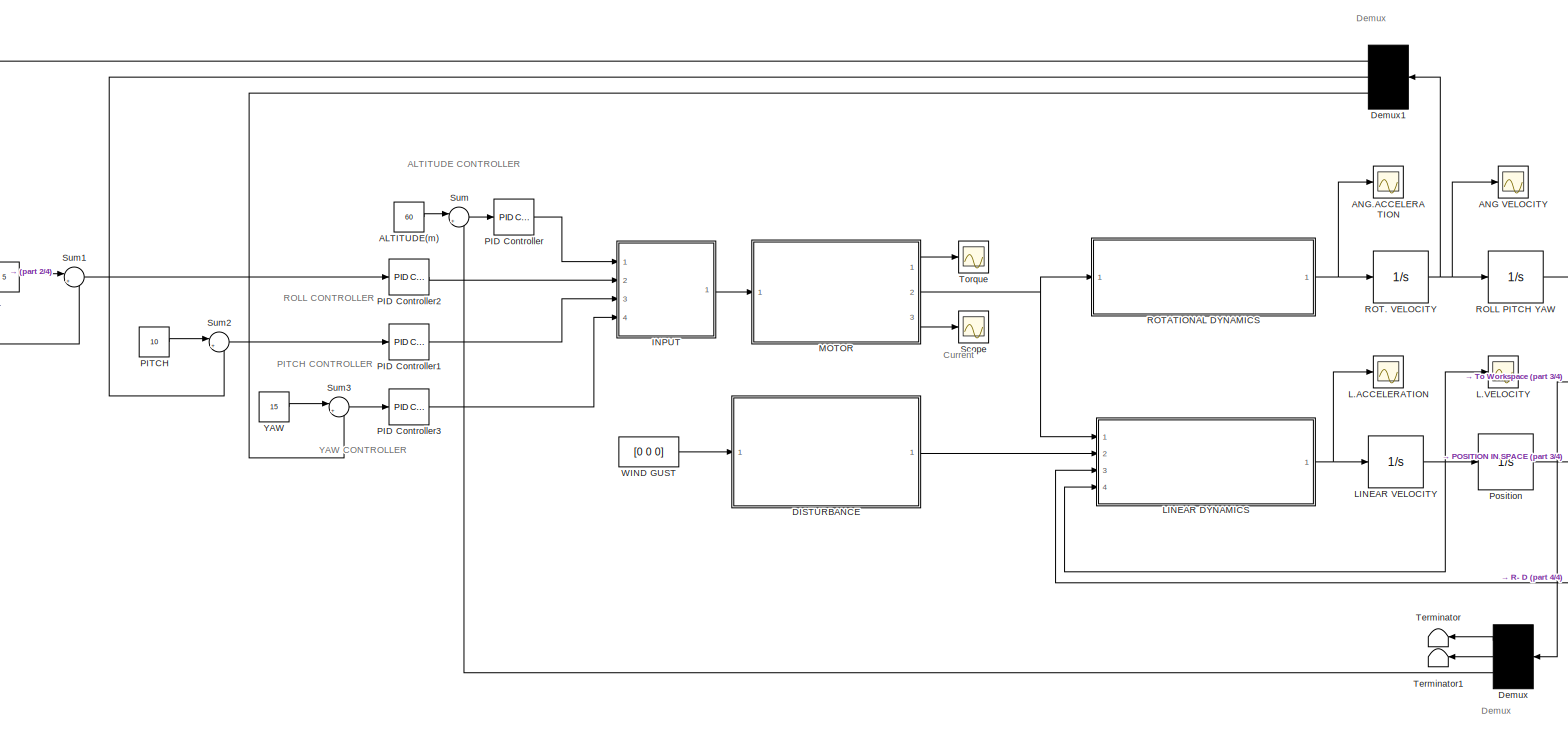
[diagram: root canvas - part 1/4, most of the canvas]
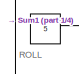
[diagram: root canvas - part 2/4, middle left region]
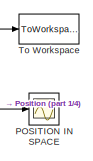
[diagram: root canvas - part 3/4, middle right region]
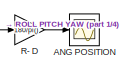
[diagram: root canvas - part 4/4, middle right region]
MODEL slx_8d508591193e
KIND model
CONFIG AbsTol = auto
CONFIG EnableMultiTasking = off
CONFIG FixedStep = auto
CONFIG MaxStep = auto
CONFIG MinStep = auto
CONFIG RelTol = 1e-3
CONFIG SampleTimeConstraint = Unconstrained
CONFIG Solver = VariableStepAuto
CONFIG SolverName = VariableStepAuto
CONFIG StartTime = 0.0
CONFIG StopTime = 100
BLOCK [Scope] 	ANG.ACCELERATION
  Floating = off
  NumInputPorts = 1
  Ports = [1]
  ScopeSpecificationString = Simulink.scopes.TimeScopeBlockCfg('CurrentConfiguration', extmgr.ConfigurationSet(extmgr.Configuration('Core','General UI',true),extmgr.Configuration('Core','Source UI',true),extmgr.Configuration('Sources','WiredSimulink',true,'DataLoggingVariableName','ScopeData4'),extmgr.Configuration('Visuals','Time Domain',true,'SerializedDisplays',{struct('MinYLimReal','-1.00000','MaxYLimReal','1.00000','YLab...<+1454ch>
BLOCK [Scope] 	POSITION IN SPACE
  Floating = off
  NumInputPorts = 1
  Ports = [1]
  ScopeSpecificationString = Simulink.scopes.TimeScopeBlockCfg('CurrentConfiguration', extmgr.ConfigurationSet(extmgr.Configuration('Core','General UI',true,'FigureColor',[1 1 1]),extmgr.Configuration('Core','Source UI',true),extmgr.Configuration('Sources','WiredSimulink',true,'DataLoggingVariableName','ScopeData6'),extmgr.Configuration('Visuals','Time Domain',true,'SerializedDisplays',{struct('MinYLimReal','-7.57413','MaxYLi...<+1616ch>
BLOCK [Constant]  
  Value = 5
BLOCK [Constant] ALTITUDE(m)
  Value = 60
BLOCK [Scope] ANG POSITION
  Floating = off
  NumInputPorts = 1
  Ports = [1]
  ScopeSpecificationString = Simulink.scopes.TimeScopeBlockCfg('CurrentConfiguration', extmgr.ConfigurationSet(extmgr.Configuration('Core','General UI',true),extmgr.Configuration('Core','Source UI',true),extmgr.Configuration('Sources','WiredSimulink',true),extmgr.Configuration('Visuals','Time Domain',true,'SerializedDisplays',{struct('MinYLimReal','-4340.5049','MaxYLimReal','3682.34054','YLabelReal','','MinYLimMag','  0.00000...<+1456ch>
BLOCK [Scope] ANG VELOCITY
  Floating = off
  NumInputPorts = 1
  Ports = [1]
  ScopeSpecificationString = Simulink.scopes.TimeScopeBlockCfg('CurrentConfiguration', extmgr.ConfigurationSet(extmgr.Configuration('Core','General UI',true,'FigureColor',[1 1 1]),extmgr.Configuration('Core','Source UI',true),extmgr.Configuration('Sources','WiredSimulink',true,'DataLoggingVariableName','ScopeData1'),extmgr.Configuration('Visuals','Time Domain',true,'SerializedDisplays',{struct('MinYLimReal','10.00447','MaxYLi...<+1802ch>
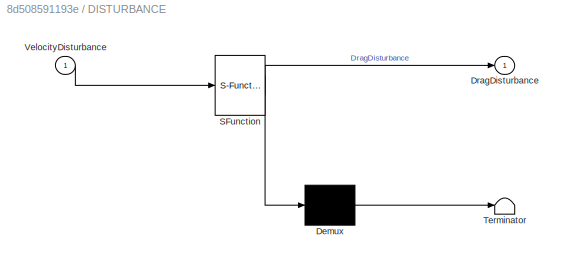
BLOCK [SubSystem] DISTURBANCE
  ErrorFcn = Stateflow.Translate.translate
  PermitHierarchicalResolution = ExplicitOnly
  Ports = [1, 1]
  RequestExecContextInheritance = off
  SFBlockType = MATLAB Function
  TreatAsAtomicUnit = on
BLOCK [Demux] DISTURBANCE/ Demux 
  Outputs = 1
  Ports = [1, 1]
BLOCK [S-Function] DISTURBANCE/ SFunction 
  EnableBusSupport = on
  FunctionName = sf_sfun
  PortCounts = [1 2]
  Ports = [1, 2]
  SFcnIsStateOwnerBlock = off
  SFunctionDeploymentMode = off
  Tag = Stateflow S-Function RBL1 4
BLOCK [Terminator] DISTURBANCE/ Terminator 
BLOCK [Outport] DISTURBANCE/DragDisturbance
  IconDisplay = Port number
BLOCK [Inport] DISTURBANCE/VelocityDisturbance
  IconDisplay = Port number
BLOCK [Demux] Demux
  DisplayOption = bar
  Outputs = 3
  Ports = [1, 3]
BLOCK [Demux] Demux1
  DisplayOption = bar
  Outputs = 3
  Ports = [1, 3]
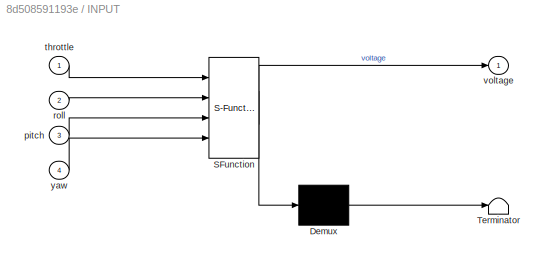
BLOCK [SubSystem] INPUT
  ErrorFcn = Stateflow.Translate.translate
  PermitHierarchicalResolution = ExplicitOnly
  Ports = [4, 1]
  RequestExecContextInheritance = off
  SFBlockType = MATLAB Function
  TreatAsAtomicUnit = on
BLOCK [Demux] INPUT/ Demux 
  Outputs = 1
  Ports = [1, 1]
BLOCK [S-Function] INPUT/ SFunction 
  EnableBusSupport = on
  FunctionName = sf_sfun
  PortCounts = [4 2]
  Ports = [4, 2]
  SFcnIsStateOwnerBlock = off
  SFunctionDeploymentMode = off
  Tag = Stateflow S-Function RBL1 5
BLOCK [Terminator] INPUT/ Terminator 
BLOCK [Inport] INPUT/pitch
  IconDisplay = Port number
  Port = 3
BLOCK [Inport] INPUT/roll
  IconDisplay = Port number
  Port = 2
BLOCK [Inport] INPUT/throttle
  IconDisplay = Port number
BLOCK [Outport] INPUT/voltage
  IconDisplay = Port number
BLOCK [Inport] INPUT/yaw
  IconDisplay = Port number
  Port = 4
BLOCK [Scope] L.ACCELERATION
  Floating = off
  NumInputPorts = 1
  Ports = [1]
  ScopeSpecificationString = Simulink.scopes.TimeScopeBlockCfg('CurrentConfiguration', extmgr.ConfigurationSet(extmgr.Configuration('Core','General UI',true),extmgr.Configuration('Core','Source UI',true),extmgr.Configuration('Sources','WiredSimulink',true,'DataLoggingVariableName','ScopeData3'),extmgr.Configuration('Visuals','Time Domain',true,'SerializedDisplays',{struct('MinYLimReal','-65.17724','MaxYLimReal','558.9964','YL...<+1521ch>
BLOCK [Scope] L.VELOCITY
  Floating = off
  NumInputPorts = 1
  Ports = [1]
  ScopeSpecificationString = Simulink.scopes.TimeScopeBlockCfg('CurrentConfiguration', extmgr.ConfigurationSet(extmgr.Configuration('Core','General UI',true),extmgr.Configuration('Core','Source UI',true),extmgr.Configuration('Sources','WiredSimulink',true,'DataLoggingVariableName','ScopeData1'),extmgr.Configuration('Visuals','Time Domain',true,'SerializedDisplays',{struct('MinYLimReal','-220.61879','MaxYLimReal','220.12311','...<+1524ch>
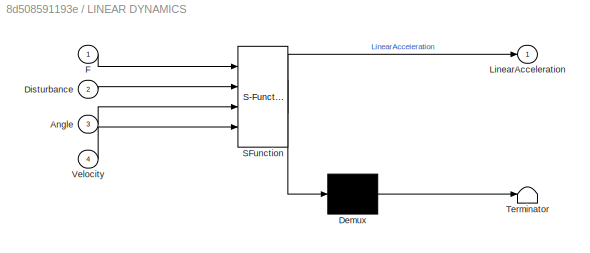
BLOCK [SubSystem] LINEAR DYNAMICS
  ErrorFcn = Stateflow.Translate.translate
  PermitHierarchicalResolution = ExplicitOnly
  Ports = [4, 1]
  RequestExecContextInheritance = off
  SFBlockType = MATLAB Function
  TreatAsAtomicUnit = on
BLOCK [Demux] LINEAR DYNAMICS/ Demux 
  Outputs = 1
  Ports = [1, 1]
BLOCK [S-Function] LINEAR DYNAMICS/ SFunction 
  EnableBusSupport = on
  FunctionName = sf_sfun
  PortCounts = [4 2]
  Ports = [4, 2]
  SFcnIsStateOwnerBlock = off
  SFunctionDeploymentMode = off
  Tag = Stateflow S-Function RBL1 3
BLOCK [Terminator] LINEAR DYNAMICS/ Terminator 
BLOCK [Inport] LINEAR DYNAMICS/Angle
  IconDisplay = Port number
  Port = 3
BLOCK [Inport] LINEAR DYNAMICS/Disturbance
  IconDisplay = Port number
  Port = 2
BLOCK [Inport] LINEAR DYNAMICS/F
  IconDisplay = Port number
BLOCK [Outport] LINEAR DYNAMICS/LinearAcceleration
  IconDisplay = Port number
BLOCK [Inport] LINEAR DYNAMICS/Velocity
  IconDisplay = Port number
  Port = 4
BLOCK [Integrator] LINEAR VELOCITY
  Ports = [1, 1]
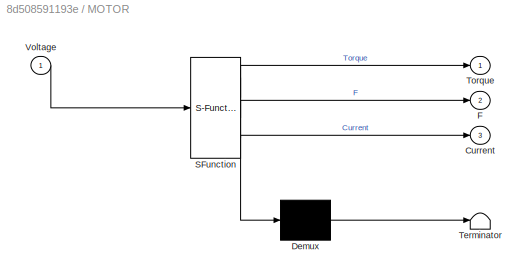
BLOCK [SubSystem] MOTOR
  ErrorFcn = Stateflow.Translate.translate
  PermitHierarchicalResolution = ExplicitOnly
  Ports = [1, 3]
  RequestExecContextInheritance = off
  SFBlockType = MATLAB Function
  TreatAsAtomicUnit = on
BLOCK [Demux] MOTOR/ Demux 
  Outputs = 1
  Ports = [1, 1]
BLOCK [S-Function] MOTOR/ SFunction 
  EnableBusSupport = on
  FunctionName = sf_sfun
  PortCounts = [1 4]
  Ports = [1, 4]
  SFcnIsStateOwnerBlock = off
  SFunctionDeploymentMode = off
  Tag = Stateflow S-Function RBL1 2
BLOCK [Terminator] MOTOR/ Terminator 
BLOCK [Outport] MOTOR/Current
  IconDisplay = Port number
  Port = 3
BLOCK [Outport] MOTOR/F
  IconDisplay = Port number
  Port = 2
BLOCK [Outport] MOTOR/Torque
  IconDisplay = Port number
BLOCK [Inport] MOTOR/Voltage
  IconDisplay = Port number
BLOCK [Reference] PID Controller  REF=simulink/Continuous/PID Controller
  Ports = [1, 1]
  SourceBlock = simulink/Continuous/PID Controller
  SourceProductBaseCode = SL
  SourceProductName = Simulink
  SourceType = PID 1dof
BLOCK [Reference] PID Controller1  REF=simulink/Continuous/PID Controller
  Ports = [1, 1]
  SourceBlock = simulink/Continuous/PID Controller
  SourceProductBaseCode = SL
  SourceProductName = Simulink
  SourceType = PID 1dof
BLOCK [Reference] PID Controller2  REF=simulink/Continuous/PID Controller
  Ports = [1, 1]
  SourceBlock = simulink/Continuous/PID Controller
  SourceProductBaseCode = SL
  SourceProductName = Simulink
  SourceType = PID 1dof
BLOCK [Reference] PID Controller3  REF=simulink/Continuous/PID Controller
  Ports = [1, 1]
  SourceBlock = simulink/Continuous/PID Controller
  SourceProductBaseCode = SL
  SourceProductName = Simulink
  SourceType = PID 1dof
BLOCK [Constant] PITCH 
  Value = 10
BLOCK [Integrator] Position
  Ports = [1, 1]
BLOCK [Gain] R- D
  Gain = 180/pi()
  OutDataTypeStr = Inherit: Inherit via internal rule
  ParamDataTypeStr = Inherit: Inherit via internal rule
  SaturateOnIntegerOverflow = off
BLOCK [Integrator] ROLL PITCH YAW
  Ports = [1, 1]
BLOCK [Integrator] ROT. VELOCITY
  Ports = [1, 1]
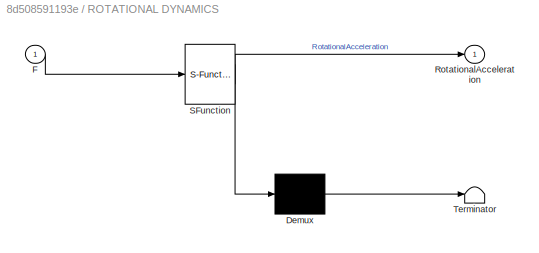
BLOCK [SubSystem] ROTATIONAL DYNAMICS
  ErrorFcn = Stateflow.Translate.translate
  PermitHierarchicalResolution = ExplicitOnly
  Ports = [1, 1]
  RequestExecContextInheritance = off
  SFBlockType = MATLAB Function
  TreatAsAtomicUnit = on
BLOCK [Demux] ROTATIONAL DYNAMICS/ Demux 
  Outputs = 1
  Ports = [1, 1]
BLOCK [S-Function] ROTATIONAL DYNAMICS/ SFunction 
  EnableBusSupport = on
  FunctionName = sf_sfun
  PortCounts = [1 2]
  Ports = [1, 2]
  SFcnIsStateOwnerBlock = off
  SFunctionDeploymentMode = off
  Tag = Stateflow S-Function RBL1 1
BLOCK [Terminator] ROTATIONAL DYNAMICS/ Terminator 
BLOCK [Inport] ROTATIONAL DYNAMICS/F
  IconDisplay = Port number
BLOCK [Outport] ROTATIONAL DYNAMICS/RotationalAcceleration
  IconDisplay = Port number
BLOCK [Scope] Scope
  Floating = off
  NumInputPorts = 1
  Ports = [1]
  ScopeSpecificationString = Simulink.scopes.TimeScopeBlockCfg('CurrentConfiguration', extmgr.ConfigurationSet(extmgr.Configuration('Core','General UI',true),extmgr.Configuration('Core','Source UI',true),extmgr.Configuration('Sources','WiredSimulink',true,'DataLoggingVariableName','ScopeData5'),extmgr.Configuration('Visuals','Time Domain',true),extmgr.Configuration('Tools','Plot Navigation',true),extmgr.Configuration('Tools',...<+40ch>
BLOCK [Sum] Sum
  IconShape = round
  InputSameDT = off
  Inputs = |+-
  OutDataTypeStr = Inherit: Inherit via internal rule
  Ports = [2, 1]
  SaturateOnIntegerOverflow = off
BLOCK [Sum] Sum1
  IconShape = round
  InputSameDT = off
  Inputs = |+-
  OutDataTypeStr = Inherit: Inherit via internal rule
  Ports = [2, 1]
  SaturateOnIntegerOverflow = off
BLOCK [Sum] Sum2
  IconShape = round
  InputSameDT = off
  Inputs = |+-
  OutDataTypeStr = Inherit: Inherit via internal rule
  Ports = [2, 1]
  SaturateOnIntegerOverflow = off
BLOCK [Sum] Sum3
  IconShape = round
  InputSameDT = off
  Inputs = |+-
  OutDataTypeStr = Inherit: Inherit via internal rule
  Ports = [2, 1]
  SaturateOnIntegerOverflow = off
BLOCK [Terminator] Terminator
BLOCK [Terminator] Terminator1
BLOCK [ToWorkspace] To Workspace
  FixptAsFi = on
  MaxDataPoints = inf
  Ports = [1]
  SampleTime = -1
  Save2DSignal = 2-D array (concatenate along first dimension)
  VariableName = Position
BLOCK [Scope] Torque
  Floating = off
  NumInputPorts = 1
  Ports = [1]
  ScopeSpecificationString = Simulink.scopes.TimeScopeBlockCfg('CurrentConfiguration', extmgr.ConfigurationSet(extmgr.Configuration('Core','General UI',true),extmgr.Configuration('Core','Source UI',true),extmgr.Configuration('Sources','WiredSimulink',true,'DataLoggingVariableName','ScopeData2'),extmgr.Configuration('Visuals','Time Domain',true,'SerializedDisplays',{struct('MinYLimReal','-0.04853','MaxYLimReal','0.43681','YLab...<+1585ch>
BLOCK [Constant] WIND GUST
  Value = [0 0 0]
BLOCK [Constant] YAW
  Value = 15
ANNOTATION (root): ALTITUDE CONTROLLER
ANNOTATION (root): Current
ANNOTATION (root): Demux
ANNOTATION (root): PITCH CONTROLLER
ANNOTATION (root): ROLL
ANNOTATION (root): ROLL CONTROLLER
ANNOTATION (root): YAW CONTROLLER
LINE  :1 -> Sum1:1
LINE ALTITUDE(m):1 -> Sum:1
LINE DISTURBANCE:1 -> LINEAR DYNAMICS:2
LINE Demux1:1 -> Sum1:2
LINE Demux1:2 -> Sum2:2
LINE Demux1:3 -> Sum3:2
LINE Demux:1 -> Terminator:1
LINE Demux:2 -> Terminator1:1
LINE Demux:3 -> Sum:2
LINE INPUT:1 -> MOTOR:1
NET LINEAR DYNAMICS:1 -> L.ACCELERATION:1, LINEAR VELOCITY:1
NET LINEAR VELOCITY:1 -> L.VELOCITY:1, LINEAR DYNAMICS:4, Position:1
LINE MOTOR:1 -> Torque:1
NET MOTOR:2 -> LINEAR DYNAMICS:1, ROTATIONAL DYNAMICS:1
LINE MOTOR:3 -> Scope:1
LINE PID Controller1:1 -> INPUT:3
LINE PID Controller2:1 -> INPUT:2
LINE PID Controller3:1 -> INPUT:4
LINE PID Controller:1 -> INPUT:1
LINE PITCH :1 -> Sum2:1
NET Position:1 -> 	POSITION IN SPACE:1, Demux:1, To Workspace:1
LINE R- D:1 -> ANG POSITION:1
NET ROLL PITCH YAW:1 -> LINEAR DYNAMICS:3, R- D:1
NET ROT. VELOCITY:1 -> ANG VELOCITY:1, Demux1:1, ROLL PITCH YAW:1
NET ROTATIONAL DYNAMICS:1 -> 	ANG.ACCELERATION:1, ROT. VELOCITY:1
LINE Sum1:1 -> PID Controller2:1
LINE Sum2:1 -> PID Controller1:1
LINE Sum3:1 -> PID Controller3:1
LINE Sum:1 -> PID Controller:1
LINE WIND GUST:1 -> DISTURBANCE:1
LINE YAW:1 -> Sum3:1
note: NET lines group one-source signal fan-out (src -> all destinations, sorted); 1:1 wires keep LINE
CHART ROTATIONAL DYNAMICS states=1 transitions=1
  STATE_LABEL 'eML_blk_kernel()'
  STATE_LABEL 'SCRIPT:\n% function RotationalAcceleration = fcn(Torque,F)\n% Moment=[0 0 0 0];\n% Inertia=[0.003 0.003 0.007];\n% RotationalAcceleration=[0 0 0];\n% Moment(1)=(F(3)+F(4))*0.237/2-(F(1)+F(2))*0.237/2;\n% Moment(2)=(F(3)+F(2))*0.237/2-(F(1)+F(4))*0.237/2;\n% Moment(3)=Torque(4)-Torque(1)+Torque(2)-Torque(3);\n% Moment(4) = F(1)+F(2)+F(3)+F(4);\n% for i=1:3\n%     RotationalAcceleration(i)=Moment(i)/Inertia(i...<+702ch>'
CHART MOTOR states=1 transitions=1
  STATE_LABEL 'eML_blk_kernel()'
  STATE_LABEL 'SCRIPT:\nfunction [Torque, F, Current] = fcn(Voltage)\nRPM=[0 0 0 0];\nTorque=[0 0 0 0 0];\nCurrent=[0 0 0 0];\nF=[0 0 0 0];\nfor i=1:4\n    RPM(i)=-62*Voltage(i)^2+2750*Voltage(i);\n    Ct=4*10^-15*RPM(i)^3+3*10^-10*RPM(i)^2-4*10^-6*RPM(i)+0.1983;\n    F(i)=Ct*1.225*(RPM(i)/60)^2*0.2^4;\n    Torque(i)=-4*10^-14*RPM(i)^3+4*10^-9*RPM(i)^2-7*10^-5*RPM(i)+0.3534;\n    Current(i)=1400*Torque(i);\nend\n\n'
CHART LINEAR DYNAMICS states=1 transitions=1
  STATE_LABEL 'eML_blk_kernel()'
  STATE_LABEL 'SCRIPT:\nfunction LinearAcceleration  = fcn(F,Disturbance, Angle, Velocity)\nm = 0.743;\ng = 9.81;\narea= [0.0197 0.0197 0.0512];\nadensity = 1.225;\ncd = 1;\nLinearAcceleration = [0 0 0];\nForce = [0 0 0];\nFProp = [0 0 0];\nFProp(1) = ((sin(Angle(1))* sin(Angle(3))) + (cos(Angle(1)) * sin(Angle(2)) * cos(Angle(3))))*(F(1)+F(2)+F(3)+F(4));\n\nFProp(2) = ((cos(Angle(1))* sin(Angle(2)) * sin(Angle(3)))  -  (si...<+748ch>'
CHART DISTURBANCE states=1 transitions=1
  STATE_LABEL 'eML_blk_kernel()'
  STATE_LABEL 'SCRIPT:\nfunction DragDisturbance  = fcn(VelocityDisturbance)\n\narea= [0.0197 0.0197 0.0512];\nDragDisturbance = [0 0 0];\nadensity = 1.225;\ncd =1;\nfor i=1:3\n    if VelocityDisturbance(i)<0\n        DragDisturbance(i)=0.5*adensity*VelocityDisturbance(i)^2*area(i)*cd;\n    else\n        DragDisturbance(i)=-0.5*adensity*VelocityDisturbance(i)^2*area(i)*cd;\n    end\nend\n'
CHART INPUT states=1 transitions=1
  STATE_LABEL 'eML_blk_kernel()'
  STATE_LABEL 'SCRIPT:\nfunction voltage = fcn(throttle,roll,pitch,yaw)\ncorrect = 0;\nif(roll/2+pitch/2+yaw/2 > (100 - throttle))\n    correct = ((roll/2+pitch/2+yaw/2)-(100-throttle));\nend\nif(roll/2+pitch/2+yaw/2 > throttle)\n    if correct < (roll/2+pitch/2+yaw/2 - throttle)\n        correct = (roll/2+pitch/2+yaw/2 - throttle);\n    end\nend\nroll = (roll - correct / 3) *2;\npitch = (pitch - correct / 3) *2;\nyaw = (yaw...<+264ch>'
